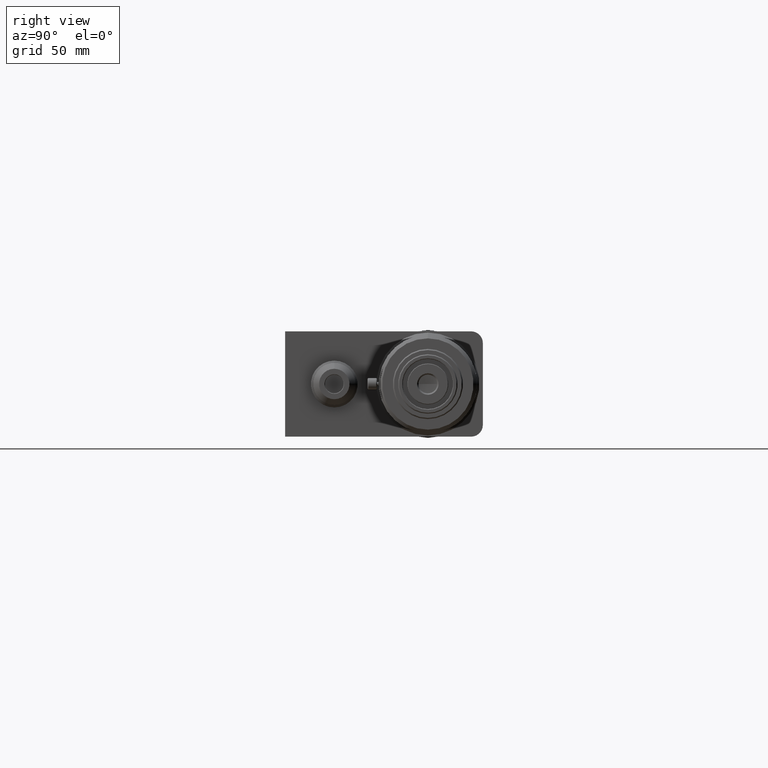
[diagram: clean part render]
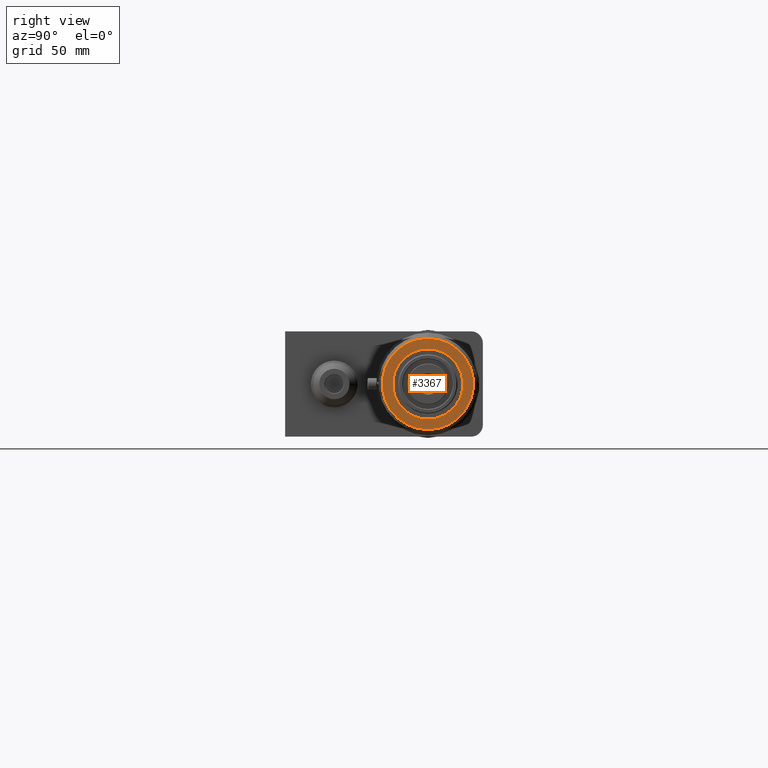
[diagram: same view with one face highlighted and labeled with its STEP entity id]
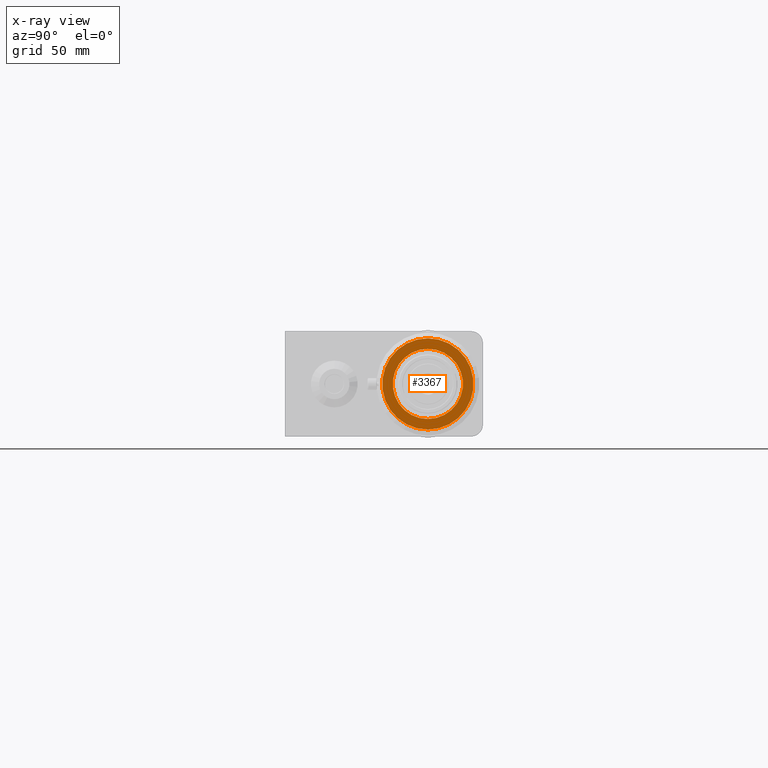
[diagram: x-ray of the same camera — body ghosted, the highlighted face saturated]
A machine part, right view. The second image highlights one B-rep face of the part: STEP entity #3367.
The next image is the same camera in x-ray: the body ghosted, the highlighted face saturated — about 0% of this face is hidden behind the body in this view.
In plain terms, the highlighted planar face has unit normal (-1, 0, 0).
Its self-contained STEP definition (entity closure, byte-faithful):
#131 = EDGE_CURVE ( 'NONE', #2738, #287, #2635, .T. ) ;
#141 = AXIS2_PLACEMENT_3D ( 'NONE', #1096, #4069, #1533 ) ;
#185 = DIRECTION ( 'NONE',  ( 1.000000000000000000, -0.0000000000000000000, -0.0000000000000000000 ) ) ;
#228 = CARTESIAN_POINT ( 'NONE',  ( 292.6282620101889100, 2.418677428316017200E-015, -19.49999999999992500 ) ) ;
#287 = VERTEX_POINT ( 'NONE', #228 ) ;
#324 = CARTESIAN_POINT ( 'NONE',  ( 292.6282620101889100, 0.0000000000000000000, 0.0000000000000000000 ) ) ;
#384 = VERTEX_POINT ( 'NONE', #1116 ) ;
#405 = ORIENTED_EDGE ( 'NONE', *, *, #1856, .T. ) ;
#443 = AXIS2_PLACEMENT_3D ( 'NONE', #573, #3535, #996 ) ;
#573 = CARTESIAN_POINT ( 'NONE',  ( 292.6282620101889100, 0.0000000000000000000, 0.0000000000000000000 ) ) ;
#656 = CIRCLE ( 'NONE', #5449, 19.49999999999992500 ) ;
#756 = DIRECTION ( 'NONE',  ( 0.0000000000000000000, 0.0000000000000000000, -1.000000000000000000 ) ) ;
#909 = VERTEX_POINT ( 'NONE', #3957 ) ;
#996 = DIRECTION ( 'NONE',  ( 0.0000000000000000000, 0.0000000000000000000, -1.000000000000000000 ) ) ;
#1082 = DIRECTION ( 'NONE',  ( 0.0000000000000000000, 0.0000000000000000000, -1.000000000000000000 ) ) ;
#1096 = CARTESIAN_POINT ( 'NONE',  ( 292.6282620101889100, 19.49999999999992500, 0.0000000000000000000 ) ) ;
#1116 = CARTESIAN_POINT ( 'NONE',  ( 292.6282620101889100, 1.836970198721029600E-015, 15.00000000000000000 ) ) ;
#1181 = FACE_BOUND ( 'NONE', #4654, .T. ) ;
#1251 = CIRCLE ( 'NONE', #443, 15.00000000000000000 ) ;
#1533 = DIRECTION ( 'NONE',  ( 0.0000000000000000000, 0.0000000000000000000, 1.000000000000000000 ) ) ;
#1676 = AXIS2_PLACEMENT_3D ( 'NONE', #2727, #185, #3159 ) ;
#1778 = EDGE_LOOP ( 'NONE', ( #3625, #405 ) ) ;
#1856 = EDGE_CURVE ( 'NONE', #287, #2738, #656, .T. ) ;
#1911 = PLANE ( 'NONE',  #141 ) ;
#2314 = AXIS2_PLACEMENT_3D ( 'NONE', #324, #3289, #756 ) ;
#2406 = EDGE_CURVE ( 'NONE', #909, #384, #2901, .T. ) ;
#2635 = CIRCLE ( 'NONE', #1676, 19.49999999999992500 ) ;
#2727 = CARTESIAN_POINT ( 'NONE',  ( 292.6282620101889100, 0.0000000000000000000, 0.0000000000000000000 ) ) ;
#2738 = VERTEX_POINT ( 'NONE', #4941 ) ;
#2901 = CIRCLE ( 'NONE', #2314, 15.00000000000000000 ) ;
#3159 = DIRECTION ( 'NONE',  ( 0.0000000000000000000, 0.0000000000000000000, -1.000000000000000000 ) ) ;
#3289 = DIRECTION ( 'NONE',  ( 1.000000000000000000, -0.0000000000000000000, -0.0000000000000000000 ) ) ;
#3324 = CARTESIAN_POINT ( 'NONE',  ( 292.6282620101889100, 0.0000000000000000000, 0.0000000000000000000 ) ) ;
#3333 = ORIENTED_EDGE ( 'NONE', *, *, #2406, .F. ) ;
#3367 = ADVANCED_FACE ( 'NONE', ( #1181, #4559 ), #1911, .F. ) ;
#3535 = DIRECTION ( 'NONE',  ( 1.000000000000000000, -0.0000000000000000000, -0.0000000000000000000 ) ) ;
#3622 = DIRECTION ( 'NONE',  ( 1.000000000000000000, -0.0000000000000000000, -0.0000000000000000000 ) ) ;
#3625 = ORIENTED_EDGE ( 'NONE', *, *, #131, .T. ) ;
#3957 = CARTESIAN_POINT ( 'NONE',  ( 292.6282620101889100, 0.0000000000000000000, -15.00000000000000000 ) ) ;
#4069 = DIRECTION ( 'NONE',  ( -1.000000000000000000, 0.0000000000000000000, 0.0000000000000000000 ) ) ;
#4527 = ORIENTED_EDGE ( 'NONE', *, *, #5161, .F. ) ;
#4559 = FACE_OUTER_BOUND ( 'NONE', #1778, .T. ) ;
#4654 = EDGE_LOOP ( 'NONE', ( #3333, #4527 ) ) ;
#4941 = CARTESIAN_POINT ( 'NONE',  ( 292.6282620101889100, 0.0000000000000000000, 19.49999999999992500 ) ) ;
#5161 = EDGE_CURVE ( 'NONE', #384, #909, #1251, .T. ) ;
#5449 = AXIS2_PLACEMENT_3D ( 'NONE', #3324, #3622, #1082 ) ;